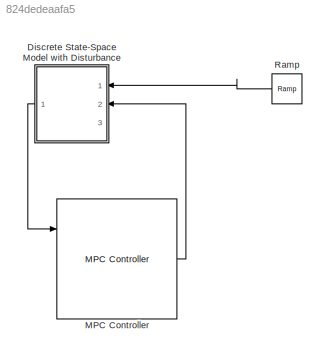
MODEL slx_824dedeaafa5
KIND model
CONFIG AbsTol = auto
CONFIG EnableMultiTasking = off
CONFIG FixedStep = auto
CONFIG MaxStep = auto
CONFIG MinStep = auto
CONFIG RelTol = 1e-3
CONFIG SampleTimeConstraint = Unconstrained
CONFIG Solver = VariableStepAuto
CONFIG SolverName = VariableStepAuto
CONFIG StartTime = 0.0
CONFIG StopTime = 10.0
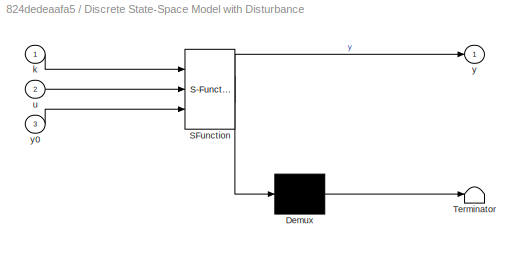
BLOCK [SubSystem] Discrete State-Space Model with Disturbance
  ErrorFcn = Stateflow.Translate.translate
  PermitHierarchicalResolution = ExplicitOnly
  Ports = [3, 1]
  RequestExecContextInheritance = off
  SFBlockType = MATLAB Function
  TreatAsAtomicUnit = on
  Variant = off
BLOCK [Demux] Discrete State-Space Model with Disturbance/ Demux 
  Outputs = 1
  Ports = [1, 1]
BLOCK [S-Function] Discrete State-Space Model with Disturbance/ SFunction 
  EnableBusSupport = on
  FunctionName = sf_sfun
  PortCounts = [3 2]
  Ports = [3, 2]
  SFcnIsStateOwnerBlock = off
  SFunctionDeploymentMode = off
  Tag = Stateflow S-Function untitled1 2
BLOCK [Terminator] Discrete State-Space Model with Disturbance/ Terminator 
BLOCK [Inport] Discrete State-Space Model with Disturbance/k
  IconDisplay = Port number
BLOCK [Inport] Discrete State-Space Model with Disturbance/u
  IconDisplay = Port number
  Port = 2
BLOCK [Outport] Discrete State-Space Model with Disturbance/y
  IconDisplay = Port number
BLOCK [Inport] Discrete State-Space Model with Disturbance/y0
  IconDisplay = Port number
  Port = 3
BLOCK [Reference] MPC Controller  REF=mpclib/MPC Controller  (lib defined in mdl_ae329e0e0455)
  Ports = [3, 1]
  SCDEnableBlockLinearizationSpecification = on
  SourceBlock = mpclib/MPC Controller
  SourceProductBaseCode = MP
  SourceProductName = Model Predictive Control Toolbox
  SourceType = MPC
BLOCK [Reference] Ramp  REF=simulink/Sources/Ramp
  Ports = [0, 1]
  SourceBlock = simulink/Sources/Ramp
  SourceProductBaseCode = SL
  SourceProductName = Simulink
  SourceType = Ramp
LINE Discrete State-Space Model with Disturbance:1 -> MPC Controller:1
LINE MPC Controller:1 -> Discrete State-Space Model with Disturbance:2
LINE Ramp:1 -> Discrete State-Space Model with Disturbance:1
CHART Discrete State-Space
Model with Disturbance states=1 transitions=1
  STATE_LABEL 'eML_blk_kernel()'
  STATE_LABEL 'SCRIPT:\nfunction y = fcn(k,u,y0)\n\nA = [   0.461, -0.0503,   0,   0;\n       0.0745,   0.548,   0,   0;\n      0.00474,  0.0752, 1.0,   0;\n         2.23,    1.01, 3.1, 1.0];\n    \nB = [   0.134;\n        4.34;\n        0.238;\n        3.7];\n    \nC = [ 0 0 0 1 ];\n\nD = [0];\n\nTs = 0.1;\n\n% Initial Condition\nx0 = [ 0;0;0;y0 ];\n\nt(:,1) = x0\n\nt(:,k+1) = A * t(:,k) + B * u;\ny = C * t(:,k) + D * u;'
